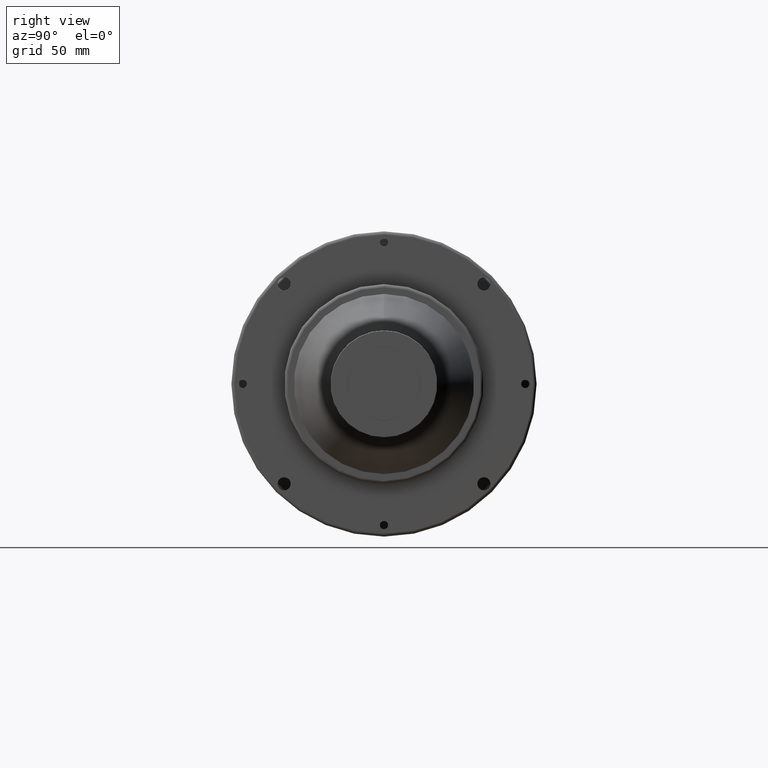
[diagram: clean part render]
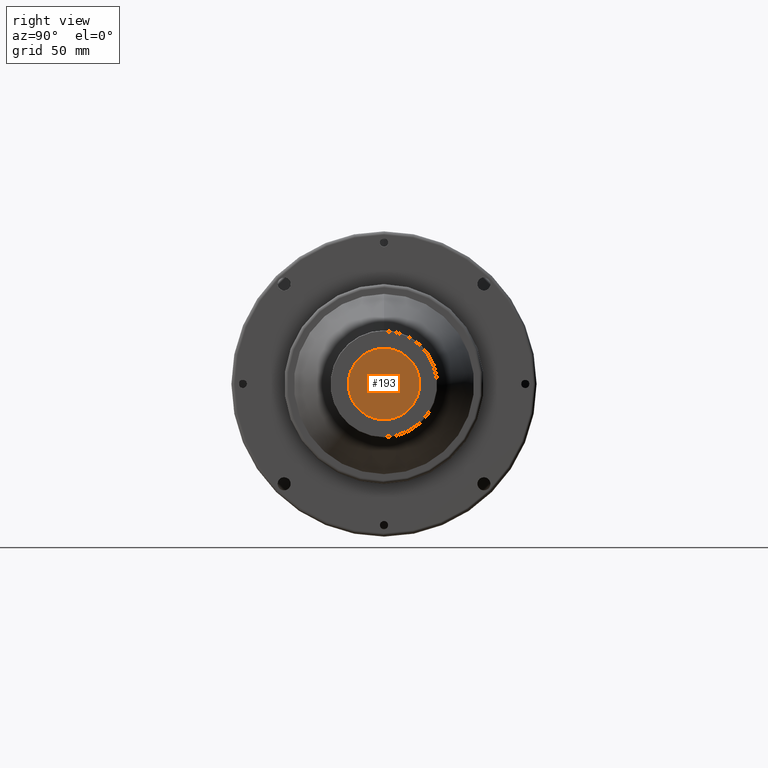
[diagram: same view with one face highlighted and labeled with its STEP entity id]
A machine part, right view. The second image highlights one B-rep face of the part: STEP entity #193.
In plain terms, the highlighted planar face has unit normal (-1, 0, -0).
Its self-contained STEP definition (entity closure, byte-faithful):
#39 = DIRECTION ( 'NONE',  ( 0.0000000000000000000, 0.0000000000000000000, 1.000000000000000000 ) ) ;
#129 = VERTEX_POINT ( 'NONE', #1477 ) ;
#150 = CIRCLE ( 'NONE', #1479, 22.00000000000000000 ) ;
#157 = CARTESIAN_POINT ( 'NONE',  ( 363.6999999999999900, 0.0000000000000000000, 0.0000000000000000000 ) ) ;
#193 = ADVANCED_FACE ( 'NONE', ( #1372 ), #1678, .F. ) ;
#224 = AXIS2_PLACEMENT_3D ( 'NONE', #1484, #329, #1465 ) ;
#329 = DIRECTION ( 'NONE',  ( -1.000000000000000000, -0.0000000000000000000, -0.0000000000000000000 ) ) ;
#511 = AXIS2_PLACEMENT_3D ( 'NONE', #1143, #575, #1428 ) ;
#575 = DIRECTION ( 'NONE',  ( -1.000000000000000000, 0.0000000000000000000, -0.0000000000000000000 ) ) ;
#692 = ORIENTED_EDGE ( 'NONE', *, *, #1542, .F. ) ;
#782 = EDGE_CURVE ( 'NONE', #1412, #129, #150, .T. ) ;
#943 = EDGE_LOOP ( 'NONE', ( #692, #1300 ) ) ;
#1143 = CARTESIAN_POINT ( 'NONE',  ( 363.6999999999999900, 22.00000000000000000, 0.0000000000000000000 ) ) ;
#1300 = ORIENTED_EDGE ( 'NONE', *, *, #782, .F. ) ;
#1372 = FACE_OUTER_BOUND ( 'NONE', #943, .T. ) ;
#1379 = CIRCLE ( 'NONE', #224, 22.00000000000000000 ) ;
#1412 = VERTEX_POINT ( 'NONE', #1848 ) ;
#1428 = DIRECTION ( 'NONE',  ( -0.0000000000000000000, 0.0000000000000000000, 1.000000000000000000 ) ) ;
#1458 = DIRECTION ( 'NONE',  ( -1.000000000000000000, -0.0000000000000000000, -0.0000000000000000000 ) ) ;
#1465 = DIRECTION ( 'NONE',  ( 0.0000000000000000000, 0.0000000000000000000, 1.000000000000000000 ) ) ;
#1477 = CARTESIAN_POINT ( 'NONE',  ( 363.6999999999999900, 0.0000000000000000000, 22.00000000000000000 ) ) ;
#1479 = AXIS2_PLACEMENT_3D ( 'NONE', #157, #1458, #39 ) ;
#1484 = CARTESIAN_POINT ( 'NONE',  ( 363.6999999999999900, 0.0000000000000000000, 0.0000000000000000000 ) ) ;
#1542 = EDGE_CURVE ( 'NONE', #129, #1412, #1379, .T. ) ;
#1678 = PLANE ( 'NONE',  #511 ) ;
#1848 = CARTESIAN_POINT ( 'NONE',  ( 363.6999999999999900, 2.694222958124176800E-015, -22.00000000000000000 ) ) ;